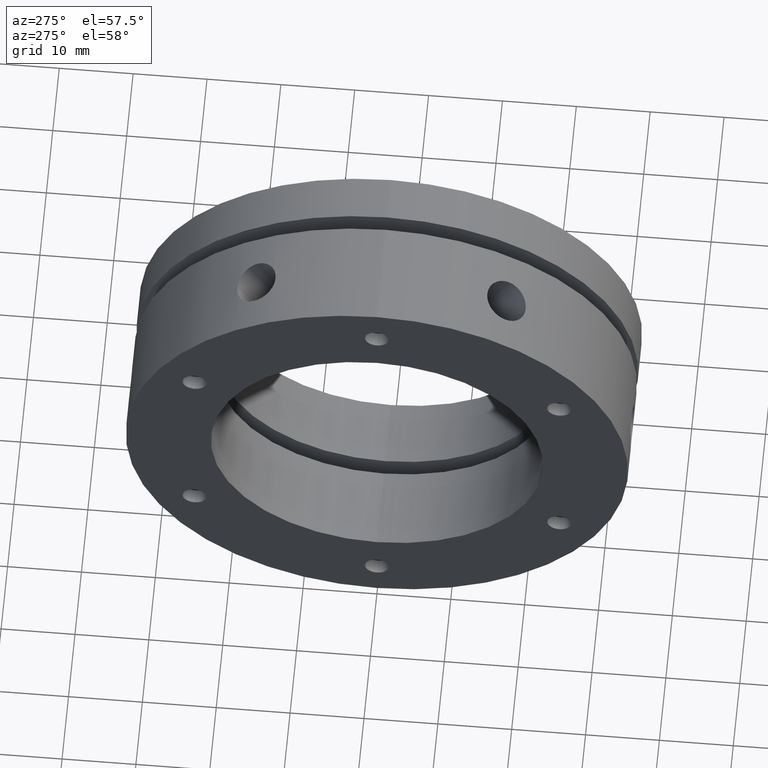
[diagram: clean part render]
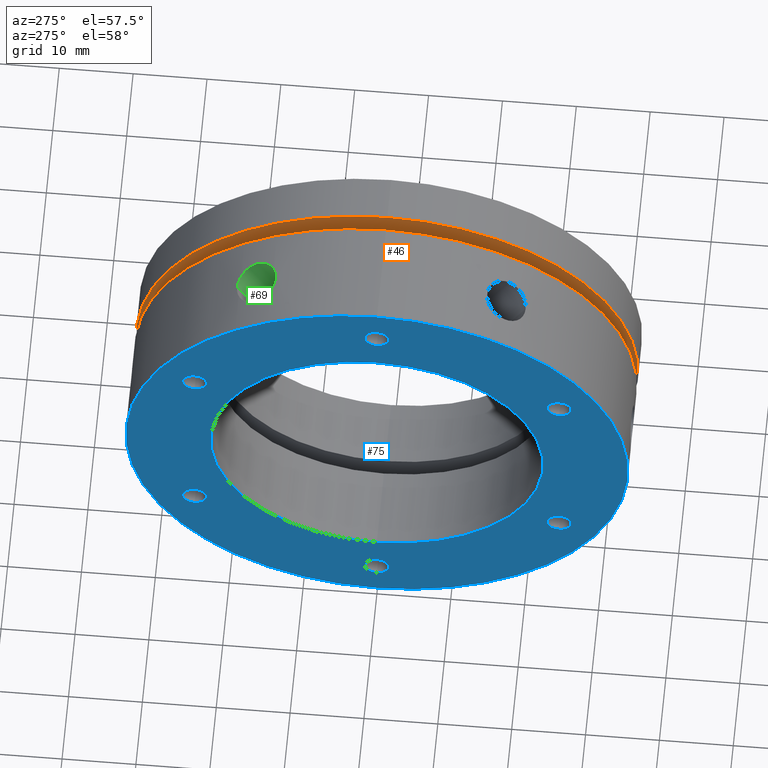
[diagram: same view with three faces highlighted in distinct colors, each labeled with its STEP entity id]
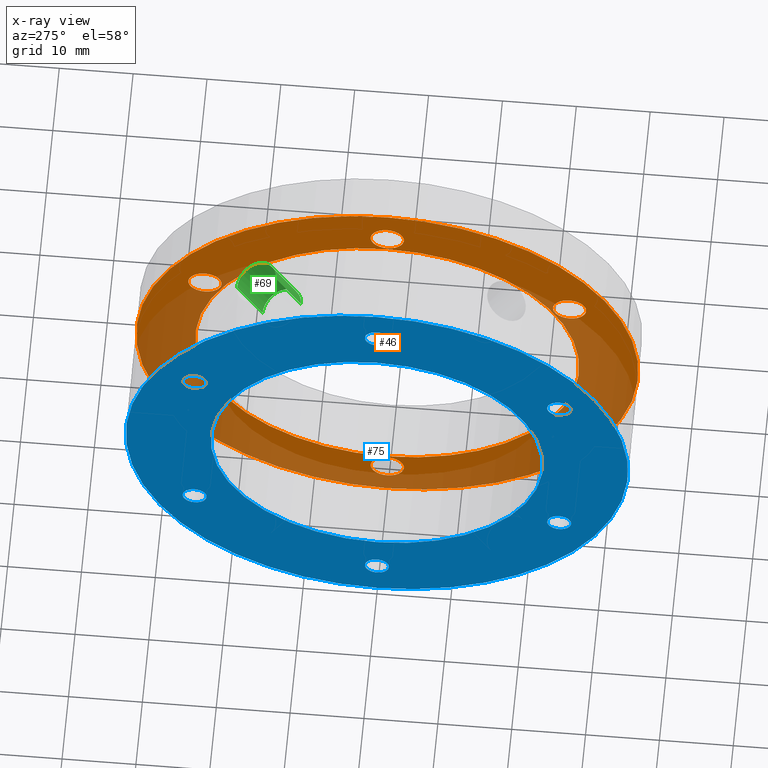
[diagram: x-ray of the same camera — body ghosted, the three highlighted faces saturated]
A machine part, auxiliary view with three faces highlighted in distinct colors.
The next image is the same camera in x-ray (body ghosted, the three faces saturated) — at least one of them is partly hidden behind the body in this view.
Their STEP definitions:

[orange] entity #46 — the highlighted planar face has unit normal (1, 0, 0).
#46 = ADVANCED_FACE ( 'NONE', ( #247, #251, #248, #250, #249, #252, #253, #254 ), #1382, .F. ) ;
#247 = FACE_BOUND ( 'NONE', #3706, .T. ) ;
#248 = FACE_BOUND ( 'NONE', #3703, .T. ) ;
#249 = FACE_BOUND ( 'NONE', #3708, .T. ) ;
#250 = FACE_BOUND ( 'NONE', #3705, .T. ) ;
#251 = FACE_BOUND ( 'NONE', #3709, .T. ) ;
#252 = FACE_BOUND ( 'NONE', #3707, .T. ) ;
#253 = FACE_BOUND ( 'NONE', #3702, .T. ) ;
#254 = FACE_OUTER_BOUND ( 'NONE', #3701, .T. ) ;
#434 = CIRCLE ( 'NONE', #1192, 2.250000000000000400 ) ;
#436 = CIRCLE ( 'NONE', #1193, 26.00000000000001100 ) ;
#457 = CIRCLE ( 'NONE', #1196, 2.250000000000000400 ) ;
#463 = CIRCLE ( 'NONE', #1197, 2.249999999999998700 ) ;
#498 = CIRCLE ( 'NONE', #1209, 34.00000000000000000 ) ;
#528 = CIRCLE ( 'NONE', #1993, 26.00000000000001100 ) ;
#651 = CIRCLE ( 'NONE', #1704, 34.00000000000000000 ) ;
#660 = CIRCLE ( 'NONE', #1712, 2.249999999999998700 ) ;
#666 = CIRCLE ( 'NONE', #1719, 2.250000000000000400 ) ;
#668 = CIRCLE ( 'NONE', #1722, 2.250000000000000400 ) ;
#669 = CIRCLE ( 'NONE', #1721, 2.250000000000001800 ) ;
#670 = CIRCLE ( 'NONE', #1723, 2.249999999999998700 ) ;
#671 = CIRCLE ( 'NONE', #1724, 2.250000000000000400 ) ;
#677 = VERTEX_POINT ( 'NONE', #1581 ) ;
#680 = VERTEX_POINT ( 'NONE', #1584 ) ;
#681 = VERTEX_POINT ( 'NONE', #1585 ) ;
#684 = VERTEX_POINT ( 'NONE', #1588 ) ;
#685 = VERTEX_POINT ( 'NONE', #1589 ) ;
#688 = VERTEX_POINT ( 'NONE', #1592 ) ;
#689 = VERTEX_POINT ( 'NONE', #1593 ) ;
#692 = VERTEX_POINT ( 'NONE', #1596 ) ;
#695 = VERTEX_POINT ( 'NONE', #1599 ) ;
#696 = VERTEX_POINT ( 'NONE', #1600 ) ;
#777 = ORIENTED_EDGE ( 'NONE', *, *, #1778, .F. ) ;
#778 = ORIENTED_EDGE ( 'NONE', *, *, #1051, .F. ) ;
#780 = ORIENTED_EDGE ( 'NONE', *, *, #2379, .F. ) ;
#784 = ORIENTED_EDGE ( 'NONE', *, *, #3632, .F. ) ;
#785 = ORIENTED_EDGE ( 'NONE', *, *, #2377, .F. ) ;
#786 = ORIENTED_EDGE ( 'NONE', *, *, #3617, .F. ) ;
#787 = ORIENTED_EDGE ( 'NONE', *, *, #2380, .F. ) ;
#788 = ORIENTED_EDGE ( 'NONE', *, *, #3625, .F. ) ;
#789 = ORIENTED_EDGE ( 'NONE', *, *, #2370, .F. ) ;
#791 = ORIENTED_EDGE ( 'NONE', *, *, #1063, .F. ) ;
#792 = ORIENTED_EDGE ( 'NONE', *, *, #1049, .F. ) ;
#793 = ORIENTED_EDGE ( 'NONE', *, *, #2362, .F. ) ;
#796 = ORIENTED_EDGE ( 'NONE', *, *, #1067, .F. ) ;
#797 = ORIENTED_EDGE ( 'NONE', *, *, #2381, .F. ) ;
#933 = ORIENTED_EDGE ( 'NONE', *, *, #1232, .F. ) ;
#944 = ORIENTED_EDGE ( 'NONE', *, *, #2382, .F. ) ;
#1049 = EDGE_CURVE ( 'NONE', #692, #689, #434, .T. ) ;
#1051 = EDGE_CURVE ( 'NONE', #4751, #4757, #436, .T. ) ;
#1063 = EDGE_CURVE ( 'NONE', #1891, #1878, #457, .T. ) ;
#1067 = EDGE_CURVE ( 'NONE', #684, #681, #463, .T. ) ;
#1192 = AXIS2_PLACEMENT_3D ( 'NONE', #2513, #2514, #2515 ) ;
#1193 = AXIS2_PLACEMENT_3D ( 'NONE', #2519, #2520, #2521 ) ;
#1196 = AXIS2_PLACEMENT_3D ( 'NONE', #2546, #2547, #2548 ) ;
#1197 = AXIS2_PLACEMENT_3D ( 'NONE', #2553, #2554, #2555 ) ;
#1209 = AXIS2_PLACEMENT_3D ( 'NONE', #2613, #2614, #2615 ) ;
#1232 = EDGE_CURVE ( 'NONE', #1882, #1896, #498, .T. ) ;
#1379 = DIRECTION ( 'NONE',  ( 1.000000000000000000, -0.0000000000000000000, 0.0000000000000000000 ) ) ;
#1381 = CARTESIAN_POINT ( 'NONE',  ( 15.99999999999999600, 30.00000000000000700, 0.0000000000000000000 ) ) ;
#1382 = PLANE ( 'NONE',  #1917 ) ;
#1384 = DIRECTION ( 'NONE',  ( 0.0000000000000000000, 0.0000000000000000000, -1.000000000000000000 ) ) ;
#1581 = CARTESIAN_POINT ( 'NONE',  ( 15.99999999999999600, 24.68172400785650600, -12.00000000000001600 ) ) ;
#1584 = CARTESIAN_POINT ( 'NONE',  ( 15.99999999999999600, 24.68172400785650600, -16.50000000000001400 ) ) ;
#1585 = CARTESIAN_POINT ( 'NONE',  ( 15.99999999999999600, -4.165346470191845000E-015, -26.25000000000001800 ) ) ;
#1588 = CARTESIAN_POINT ( 'NONE',  ( 15.99999999999999600, -4.440891999999999900E-015, -30.75000000000001400 ) ) ;
#1589 = CARTESIAN_POINT ( 'NONE',  ( 15.99999999999999600, -24.68172400785651300, -12.00000000000000400 ) ) ;
#1592 = CARTESIAN_POINT ( 'NONE',  ( 15.99999999999999600, -24.68172400785651300, -16.50000000000000400 ) ) ;
#1593 = CARTESIAN_POINT ( 'NONE',  ( 15.99999999999999600, -24.68172400785650900, 16.50000000000000700 ) ) ;
#1596 = CARTESIAN_POINT ( 'NONE',  ( 15.99999999999999600, -24.68172400785650900, 12.00000000000000700 ) ) ;
#1599 = CARTESIAN_POINT ( 'NONE',  ( 15.99999999999999600, 2.755455298081542800E-016, 30.75000000000001400 ) ) ;
#1600 = CARTESIAN_POINT ( 'NONE',  ( 15.99999999999999600, 0.0000000000000000000, 26.25000000000001100 ) ) ;
#1704 = AXIS2_PLACEMENT_3D ( 'NONE', #3136, #3137, #3138 ) ;
#1712 = AXIS2_PLACEMENT_3D ( 'NONE', #3160, #3161, #3162 ) ;
#1719 = AXIS2_PLACEMENT_3D ( 'NONE', #3181, #3182, #3183 ) ;
#1721 = AXIS2_PLACEMENT_3D ( 'NONE', #3187, #3188, #3189 ) ;
#1722 = AXIS2_PLACEMENT_3D ( 'NONE', #3190, #3191, #3192 ) ;
#1723 = AXIS2_PLACEMENT_3D ( 'NONE', #3193, #3194, #3195 ) ;
#1724 = AXIS2_PLACEMENT_3D ( 'NONE', #3198, #3199, #3200 ) ;
#1732 = AXIS2_PLACEMENT_3D ( 'NONE', #3234, #3235, #3236 ) ;
#1735 = AXIS2_PLACEMENT_3D ( 'NONE', #3251, #3252, #3253 ) ;
#1739 = AXIS2_PLACEMENT_3D ( 'NONE', #3269, #3270, #3271 ) ;
#1778 = EDGE_CURVE ( 'NONE', #4757, #4751, #528, .T. ) ;
#1878 = VERTEX_POINT ( 'NONE', #2906 ) ;
#1882 = VERTEX_POINT ( 'NONE', #2910 ) ;
#1891 = VERTEX_POINT ( 'NONE', #2919 ) ;
#1896 = VERTEX_POINT ( 'NONE', #2924 ) ;
#1917 = AXIS2_PLACEMENT_3D ( 'NONE', #1381, #1379, #1384 ) ;
#1993 = AXIS2_PLACEMENT_3D ( 'NONE', #2683, #2684, #2685 ) ;
#2362 = EDGE_CURVE ( 'NONE', #1896, #1882, #651, .T. ) ;
#2370 = EDGE_CURVE ( 'NONE', #677, #680, #660, .T. ) ;
#2377 = EDGE_CURVE ( 'NONE', #689, #692, #666, .T. ) ;
#2379 = EDGE_CURVE ( 'NONE', #695, #696, #669, .T. ) ;
#2380 = EDGE_CURVE ( 'NONE', #685, #688, #668, .T. ) ;
#2381 = EDGE_CURVE ( 'NONE', #681, #684, #670, .T. ) ;
#2382 = EDGE_CURVE ( 'NONE', #1878, #1891, #671, .T. ) ;
#2513 = CARTESIAN_POINT ( 'NONE',  ( 15.99999999999999600, -24.68172400785650900, 14.25000000000000700 ) ) ;
#2514 = DIRECTION ( 'NONE',  ( -1.000000000000000000, -0.0000000000000000000, -0.0000000000000000000 ) ) ;
#2515 = DIRECTION ( 'NONE',  ( 0.0000000000000000000, 0.0000000000000000000, -1.000000000000000000 ) ) ;
#2519 = CARTESIAN_POINT ( 'NONE',  ( 15.99999999999999600, 0.0000000000000000000, 0.0000000000000000000 ) ) ;
#2520 = DIRECTION ( 'NONE',  ( -1.000000000000000000, 0.0000000000000000000, 0.0000000000000000000 ) ) ;
#2521 = DIRECTION ( 'NONE',  ( 0.0000000000000000000, 0.0000000000000000000, 1.000000000000000000 ) ) ;
#2546 = CARTESIAN_POINT ( 'NONE',  ( 15.99999999999999600, 24.68172400785652700, 14.24999999999998600 ) ) ;
#2547 = DIRECTION ( 'NONE',  ( -1.000000000000000000, -0.0000000000000000000, -0.0000000000000000000 ) ) ;
#2548 = DIRECTION ( 'NONE',  ( 0.0000000000000000000, 0.0000000000000000000, -1.000000000000000000 ) ) ;
#2553 = CARTESIAN_POINT ( 'NONE',  ( 15.99999999999999600, -4.440891999999999900E-015, -28.50000000000001400 ) ) ;
#2554 = DIRECTION ( 'NONE',  ( -1.000000000000000000, -0.0000000000000000000, -0.0000000000000000000 ) ) ;
#2555 = DIRECTION ( 'NONE',  ( 0.0000000000000000000, 0.0000000000000000000, -1.000000000000000000 ) ) ;
#2613 = CARTESIAN_POINT ( 'NONE',  ( 15.99999999999999600, 0.0000000000000000000, 0.0000000000000000000 ) ) ;
#2614 = DIRECTION ( 'NONE',  ( 1.000000000000000000, 0.0000000000000000000, 0.0000000000000000000 ) ) ;
#2615 = DIRECTION ( 'NONE',  ( 0.0000000000000000000, 0.0000000000000000000, -1.000000000000000000 ) ) ;
#2683 = CARTESIAN_POINT ( 'NONE',  ( 15.99999999999999600, 0.0000000000000000000, 0.0000000000000000000 ) ) ;
#2684 = DIRECTION ( 'NONE',  ( -1.000000000000000000, 0.0000000000000000000, 0.0000000000000000000 ) ) ;
#2685 = DIRECTION ( 'NONE',  ( 0.0000000000000000000, 0.0000000000000000000, 1.000000000000000000 ) ) ;
#2906 = CARTESIAN_POINT ( 'NONE',  ( 15.99999999999999600, 24.68172400785652700, 16.49999999999998600 ) ) ;
#2910 = CARTESIAN_POINT ( 'NONE',  ( 15.99999999999999600, 0.0000000000000000000, -34.00000000000000000 ) ) ;
#2919 = CARTESIAN_POINT ( 'NONE',  ( 15.99999999999999600, 24.68172400785652700, 11.99999999999998600 ) ) ;
#2924 = CARTESIAN_POINT ( 'NONE',  ( 15.99999999999999600, 4.163799117101000600E-015, 34.00000000000000000 ) ) ;
#3136 = CARTESIAN_POINT ( 'NONE',  ( 15.99999999999999600, 0.0000000000000000000, 0.0000000000000000000 ) ) ;
#3137 = DIRECTION ( 'NONE',  ( 1.000000000000000000, 0.0000000000000000000, 0.0000000000000000000 ) ) ;
#3138 = DIRECTION ( 'NONE',  ( 0.0000000000000000000, 0.0000000000000000000, -1.000000000000000000 ) ) ;
#3160 = CARTESIAN_POINT ( 'NONE',  ( 15.99999999999999600, 24.68172400785650600, -14.25000000000001600 ) ) ;
#3161 = DIRECTION ( 'NONE',  ( -1.000000000000000000, -0.0000000000000000000, -0.0000000000000000000 ) ) ;
#3162 = DIRECTION ( 'NONE',  ( 0.0000000000000000000, 0.0000000000000000000, -1.000000000000000000 ) ) ;
#3181 = CARTESIAN_POINT ( 'NONE',  ( 15.99999999999999600, -24.68172400785650900, 14.25000000000000700 ) ) ;
#3182 = DIRECTION ( 'NONE',  ( -1.000000000000000000, -0.0000000000000000000, -0.0000000000000000000 ) ) ;
#3183 = DIRECTION ( 'NONE',  ( 0.0000000000000000000, 0.0000000000000000000, -1.000000000000000000 ) ) ;
#3187 = CARTESIAN_POINT ( 'NONE',  ( 15.99999999999999600, 0.0000000000000000000, 28.50000000000001100 ) ) ;
#3188 = DIRECTION ( 'NONE',  ( -1.000000000000000000, -0.0000000000000000000, -0.0000000000000000000 ) ) ;
#3189 = DIRECTION ( 'NONE',  ( 0.0000000000000000000, 0.0000000000000000000, -1.000000000000000000 ) ) ;
#3190 = CARTESIAN_POINT ( 'NONE',  ( 15.99999999999999600, -24.68172400785651300, -14.25000000000000400 ) ) ;
#3191 = DIRECTION ( 'NONE',  ( -1.000000000000000000, -0.0000000000000000000, -0.0000000000000000000 ) ) ;
#3192 = DIRECTION ( 'NONE',  ( 0.0000000000000000000, 0.0000000000000000000, -1.000000000000000000 ) ) ;
#3193 = CARTESIAN_POINT ( 'NONE',  ( 15.99999999999999600, -4.440891999999999900E-015, -28.50000000000001400 ) ) ;
#3194 = DIRECTION ( 'NONE',  ( -1.000000000000000000, -0.0000000000000000000, -0.0000000000000000000 ) ) ;
#3195 = DIRECTION ( 'NONE',  ( 0.0000000000000000000, 0.0000000000000000000, -1.000000000000000000 ) ) ;
#3198 = CARTESIAN_POINT ( 'NONE',  ( 15.99999999999999600, 24.68172400785652700, 14.24999999999998600 ) ) ;
#3199 = DIRECTION ( 'NONE',  ( -1.000000000000000000, -0.0000000000000000000, -0.0000000000000000000 ) ) ;
#3200 = DIRECTION ( 'NONE',  ( 0.0000000000000000000, 0.0000000000000000000, -1.000000000000000000 ) ) ;
#3234 = CARTESIAN_POINT ( 'NONE',  ( 15.99999999999999600, -24.68172400785651300, -14.25000000000000400 ) ) ;
#3235 = DIRECTION ( 'NONE',  ( -1.000000000000000000, -0.0000000000000000000, -0.0000000000000000000 ) ) ;
#3236 = DIRECTION ( 'NONE',  ( 0.0000000000000000000, 0.0000000000000000000, -1.000000000000000000 ) ) ;
#3251 = CARTESIAN_POINT ( 'NONE',  ( 15.99999999999999600, 24.68172400785650600, -14.25000000000001600 ) ) ;
#3252 = DIRECTION ( 'NONE',  ( -1.000000000000000000, -0.0000000000000000000, -0.0000000000000000000 ) ) ;
#3253 = DIRECTION ( 'NONE',  ( 0.0000000000000000000, 0.0000000000000000000, -1.000000000000000000 ) ) ;
#3269 = CARTESIAN_POINT ( 'NONE',  ( 15.99999999999999600, 0.0000000000000000000, 28.50000000000001100 ) ) ;
#3270 = DIRECTION ( 'NONE',  ( -1.000000000000000000, -0.0000000000000000000, -0.0000000000000000000 ) ) ;
#3271 = DIRECTION ( 'NONE',  ( 0.0000000000000000000, 0.0000000000000000000, -1.000000000000000000 ) ) ;
#3617 = EDGE_CURVE ( 'NONE', #688, #685, #3729, .T. ) ;
#3625 = EDGE_CURVE ( 'NONE', #680, #677, #3734, .T. ) ;
#3632 = EDGE_CURVE ( 'NONE', #696, #695, #3745, .T. ) ;
#3701 = EDGE_LOOP ( 'NONE', ( #933, #793 ) ) ;
#3702 = EDGE_LOOP ( 'NONE', ( #791, #944 ) ) ;
#3703 = EDGE_LOOP ( 'NONE', ( #792, #785 ) ) ;
#3705 = EDGE_LOOP ( 'NONE', ( #786, #787 ) ) ;
#3706 = EDGE_LOOP ( 'NONE', ( #778, #777 ) ) ;
#3707 = EDGE_LOOP ( 'NONE', ( #788, #789 ) ) ;
#3708 = EDGE_LOOP ( 'NONE', ( #796, #797 ) ) ;
#3709 = EDGE_LOOP ( 'NONE', ( #784, #780 ) ) ;
#3729 = CIRCLE ( 'NONE', #1732, 2.250000000000000400 ) ;
#3734 = CIRCLE ( 'NONE', #1735, 2.249999999999998700 ) ;
#3745 = CIRCLE ( 'NONE', #1739, 2.250000000000001800 ) ;
#4348 = CARTESIAN_POINT ( 'NONE',  ( 15.99999999999999600, 0.0000000000000000000, 26.00000000000001100 ) ) ;
#4354 = CARTESIAN_POINT ( 'NONE',  ( 15.99999999999999600, 3.184081677783119400E-015, -26.00000000000001100 ) ) ;
#4751 = VERTEX_POINT ( 'NONE', #4348 ) ;
#4757 = VERTEX_POINT ( 'NONE', #4354 ) ;

[blue] entity #75 — the highlighted planar face has unit normal (-1, 0, 0).
#75 = ADVANCED_FACE ( 'NONE', ( #319, #327, #323, #321, #325, #328, #329, #330 ), #1473, .T. ) ;
#319 = FACE_BOUND ( 'NONE', #3654, .T. ) ;
#321 = FACE_BOUND ( 'NONE', #3658, .T. ) ;
#323 = FACE_BOUND ( 'NONE', #3657, .T. ) ;
#325 = FACE_BOUND ( 'NONE', #3659, .T. ) ;
#327 = FACE_BOUND ( 'NONE', #3660, .T. ) ;
#328 = FACE_BOUND ( 'NONE', #3653, .T. ) ;
#329 = FACE_BOUND ( 'NONE', #3652, .T. ) ;
#330 = FACE_OUTER_BOUND ( 'NONE', #3651, .T. ) ;
#477 = CIRCLE ( 'NONE', #1201, 1.621000000000000900 ) ;
#488 = CIRCLE ( 'NONE', #1205, 1.621000000000000900 ) ;
#494 = CIRCLE ( 'NONE', #1207, 1.621000000000000900 ) ;
#504 = CIRCLE ( 'NONE', #1974, 1.620999999999999100 ) ;
#631 = CIRCLE ( 'NONE', #2028, 22.50000000000000000 ) ;
#633 = CIRCLE ( 'NONE', #2026, 34.00000000000000000 ) ;
#635 = CIRCLE ( 'NONE', #2029, 1.621000000000000900 ) ;
#637 = CIRCLE ( 'NONE', #2030, 1.620999999999999100 ) ;
#638 = CIRCLE ( 'NONE', #2031, 1.621000000000000900 ) ;
#640 = CIRCLE ( 'NONE', #2032, 1.621000000000000900 ) ;
#641 = CIRCLE ( 'NONE', #2033, 1.621000000000000900 ) ;
#642 = CIRCLE ( 'NONE', #2034, 1.620999999999999100 ) ;
#756 = ORIENTED_EDGE ( 'NONE', *, *, #4616, .T. ) ;
#772 = ORIENTED_EDGE ( 'NONE', *, *, #3647, .F. ) ;
#812 = ORIENTED_EDGE ( 'NONE', *, *, #1223, .T. ) ;
#865 = ORIENTED_EDGE ( 'NONE', *, *, #2348, .T. ) ;
#888 = ORIENTED_EDGE ( 'NONE', *, *, #2352, .T. ) ;
#889 = ORIENTED_EDGE ( 'NONE', *, *, #1227, .T. ) ;
#895 = ORIENTED_EDGE ( 'NONE', *, *, #2349, .T. ) ;
#908 = ORIENTED_EDGE ( 'NONE', *, *, #4600, .T. ) ;
#914 = ORIENTED_EDGE ( 'NONE', *, *, #1238, .T. ) ;
#917 = ORIENTED_EDGE ( 'NONE', *, *, #2347, .T. ) ;
#925 = ORIENTED_EDGE ( 'NONE', *, *, #2350, .T. ) ;
#947 = ORIENTED_EDGE ( 'NONE', *, *, #2346, .T. ) ;
#959 = ORIENTED_EDGE ( 'NONE', *, *, #2341, .F. ) ;
#961 = ORIENTED_EDGE ( 'NONE', *, *, #4611, .T. ) ;
#967 = ORIENTED_EDGE ( 'NONE', *, *, #1216, .T. ) ;
#971 = ORIENTED_EDGE ( 'NONE', *, *, #2351, .T. ) ;
#978 = VERTEX_POINT ( 'NONE', #2448 ) ;
#981 = VERTEX_POINT ( 'NONE', #2452 ) ;
#982 = VERTEX_POINT ( 'NONE', #2454 ) ;
#985 = VERTEX_POINT ( 'NONE', #2447 ) ;
#986 = VERTEX_POINT ( 'NONE', #2456 ) ;
#991 = VERTEX_POINT ( 'NONE', #2461 ) ;
#1015 = VERTEX_POINT ( 'NONE', #2485 ) ;
#1016 = VERTEX_POINT ( 'NONE', #2486 ) ;
#1022 = VERTEX_POINT ( 'NONE', #2492 ) ;
#1201 = AXIS2_PLACEMENT_3D ( 'NONE', #2576, #2577, #2578 ) ;
#1205 = AXIS2_PLACEMENT_3D ( 'NONE', #2594, #2595, #2596 ) ;
#1207 = AXIS2_PLACEMENT_3D ( 'NONE', #2604, #2605, #2606 ) ;
#1216 = EDGE_CURVE ( 'NONE', #978, #4763, #477, .T. ) ;
#1223 = EDGE_CURVE ( 'NONE', #3454, #3469, #488, .T. ) ;
#1227 = EDGE_CURVE ( 'NONE', #3514, #4762, #494, .T. ) ;
#1238 = EDGE_CURVE ( 'NONE', #4759, #4758, #504, .T. ) ;
#1469 = DIRECTION ( 'NONE',  ( -1.000000000000000000, 0.0000000000000000000, 0.0000000000000000000 ) ) ;
#1471 = CARTESIAN_POINT ( 'NONE',  ( -7.438384999999999900E-015, 28.25000000000000000, 0.0000000000000000000 ) ) ;
#1473 = PLANE ( 'NONE',  #1946 ) ;
#1474 = DIRECTION ( 'NONE',  ( 0.0000000000000000000, 0.0000000000000000000, 1.000000000000000000 ) ) ;
#1746 = AXIS2_PLACEMENT_3D ( 'NONE', #3339, #3340, #3341 ) ;
#1946 = AXIS2_PLACEMENT_3D ( 'NONE', #1471, #1469, #1474 ) ;
#1974 = AXIS2_PLACEMENT_3D ( 'NONE', #2623, #2624, #2625 ) ;
#2026 = AXIS2_PLACEMENT_3D ( 'NONE', #2983, #2984, #2985 ) ;
#2028 = AXIS2_PLACEMENT_3D ( 'NONE', #3088, #3089, #3090 ) ;
#2029 = AXIS2_PLACEMENT_3D ( 'NONE', #3091, #3092, #3093 ) ;
#2030 = AXIS2_PLACEMENT_3D ( 'NONE', #3094, #3095, #3096 ) ;
#2031 = AXIS2_PLACEMENT_3D ( 'NONE', #3097, #3098, #3099 ) ;
#2032 = AXIS2_PLACEMENT_3D ( 'NONE', #3100, #3101, #3102 ) ;
#2033 = AXIS2_PLACEMENT_3D ( 'NONE', #3103, #3104, #3105 ) ;
#2034 = AXIS2_PLACEMENT_3D ( 'NONE', #3106, #3107, #3108 ) ;
#2341 = EDGE_CURVE ( 'NONE', #1022, #1016, #633, .T. ) ;
#2346 = EDGE_CURVE ( 'NONE', #1015, #991, #631, .T. ) ;
#2347 = EDGE_CURVE ( 'NONE', #985, #986, #635, .T. ) ;
#2348 = EDGE_CURVE ( 'NONE', #981, #982, #637, .T. ) ;
#2349 = EDGE_CURVE ( 'NONE', #4763, #978, #638, .T. ) ;
#2350 = EDGE_CURVE ( 'NONE', #3469, #3454, #640, .T. ) ;
#2351 = EDGE_CURVE ( 'NONE', #4762, #3514, #641, .T. ) ;
#2352 = EDGE_CURVE ( 'NONE', #4758, #4759, #642, .T. ) ;
#2447 = CARTESIAN_POINT ( 'NONE',  ( -7.806255641895631900E-015, 1.985152461417858200E-016, 26.87900000000001200 ) ) ;
#2448 = CARTESIAN_POINT ( 'NONE',  ( -7.806255641895631900E-015, -24.68172400785651300, -12.62900000000000300 ) ) ;
#2452 = CARTESIAN_POINT ( 'NONE',  ( -7.806255641895631900E-015, -24.68172400785650900, 12.62900000000000700 ) ) ;
#2454 = CARTESIAN_POINT ( 'NONE',  ( -7.806255641895631900E-015, -24.68172400785650900, 15.87100000000000600 ) ) ;
#2456 = CARTESIAN_POINT ( 'NONE',  ( -7.806255641895631900E-015, 0.0000000000000000000, 30.12100000000001300 ) ) ;
#2461 = CARTESIAN_POINT ( 'NONE',  ( -5.204170427930421300E-015, 2.755455298081544800E-015, 22.50000000000000000 ) ) ;
#2485 = CARTESIAN_POINT ( 'NONE',  ( -5.204170427930421300E-015, 0.0000000000000000000, -22.50000000000000000 ) ) ;
#2486 = CARTESIAN_POINT ( 'NONE',  ( -8.673617379884035500E-015, 0.0000000000000000000, -34.00000000000000000 ) ) ;
#2492 = CARTESIAN_POINT ( 'NONE',  ( -8.673617379884035500E-015, 4.163799117101000600E-015, 34.00000000000000000 ) ) ;
#2576 = CARTESIAN_POINT ( 'NONE',  ( -7.806255641895631900E-015, -24.68172400785651300, -14.25000000000000400 ) ) ;
#2577 = DIRECTION ( 'NONE',  ( 1.000000000000000000, -0.0000000000000000000, -0.0000000000000000000 ) ) ;
#2578 = DIRECTION ( 'NONE',  ( 0.0000000000000000000, 0.0000000000000000000, 1.000000000000000000 ) ) ;
#2594 = CARTESIAN_POINT ( 'NONE',  ( -7.806255641895631900E-015, -4.440891999999999900E-015, -28.50000000000001400 ) ) ;
#2595 = DIRECTION ( 'NONE',  ( 1.000000000000000000, -0.0000000000000000000, -0.0000000000000000000 ) ) ;
#2596 = DIRECTION ( 'NONE',  ( 0.0000000000000000000, 0.0000000000000000000, 1.000000000000000000 ) ) ;
#2604 = CARTESIAN_POINT ( 'NONE',  ( -7.806255641895631900E-015, 24.68172400785650600, -14.25000000000001600 ) ) ;
#2605 = DIRECTION ( 'NONE',  ( 1.000000000000000000, -0.0000000000000000000, -0.0000000000000000000 ) ) ;
#2606 = DIRECTION ( 'NONE',  ( 0.0000000000000000000, 0.0000000000000000000, 1.000000000000000000 ) ) ;
#2623 = CARTESIAN_POINT ( 'NONE',  ( -7.806255641895631900E-015, 24.68172400785652700, 14.24999999999998600 ) ) ;
#2624 = DIRECTION ( 'NONE',  ( 1.000000000000000000, -0.0000000000000000000, -0.0000000000000000000 ) ) ;
#2625 = DIRECTION ( 'NONE',  ( 0.0000000000000000000, 0.0000000000000000000, 1.000000000000000000 ) ) ;
#2983 = CARTESIAN_POINT ( 'NONE',  ( -8.673617379884035500E-015, 0.0000000000000000000, 0.0000000000000000000 ) ) ;
#2984 = DIRECTION ( 'NONE',  ( 1.000000000000000000, 0.0000000000000000000, 0.0000000000000000000 ) ) ;
#2985 = DIRECTION ( 'NONE',  ( 0.0000000000000000000, 0.0000000000000000000, -1.000000000000000000 ) ) ;
#3088 = CARTESIAN_POINT ( 'NONE',  ( -5.204170427930421300E-015, 0.0000000000000000000, 0.0000000000000000000 ) ) ;
#3089 = DIRECTION ( 'NONE',  ( 1.000000000000000000, 0.0000000000000000000, 0.0000000000000000000 ) ) ;
#3090 = DIRECTION ( 'NONE',  ( 0.0000000000000000000, 0.0000000000000000000, -1.000000000000000000 ) ) ;
#3091 = CARTESIAN_POINT ( 'NONE',  ( -7.806255641895631900E-015, 0.0000000000000000000, 28.50000000000001100 ) ) ;
#3092 = DIRECTION ( 'NONE',  ( 1.000000000000000000, -0.0000000000000000000, -0.0000000000000000000 ) ) ;
#3093 = DIRECTION ( 'NONE',  ( 0.0000000000000000000, 0.0000000000000000000, 1.000000000000000000 ) ) ;
#3094 = CARTESIAN_POINT ( 'NONE',  ( -7.806255641895631900E-015, -24.68172400785650900, 14.25000000000000700 ) ) ;
#3095 = DIRECTION ( 'NONE',  ( 1.000000000000000000, -0.0000000000000000000, -0.0000000000000000000 ) ) ;
#3096 = DIRECTION ( 'NONE',  ( 0.0000000000000000000, 0.0000000000000000000, 1.000000000000000000 ) ) ;
#3097 = CARTESIAN_POINT ( 'NONE',  ( -7.806255641895631900E-015, -24.68172400785651300, -14.25000000000000400 ) ) ;
#3098 = DIRECTION ( 'NONE',  ( 1.000000000000000000, -0.0000000000000000000, -0.0000000000000000000 ) ) ;
#3099 = DIRECTION ( 'NONE',  ( 0.0000000000000000000, 0.0000000000000000000, 1.000000000000000000 ) ) ;
#3100 = CARTESIAN_POINT ( 'NONE',  ( -7.806255641895631900E-015, -4.440891999999999900E-015, -28.50000000000001400 ) ) ;
#3101 = DIRECTION ( 'NONE',  ( 1.000000000000000000, -0.0000000000000000000, -0.0000000000000000000 ) ) ;
#3102 = DIRECTION ( 'NONE',  ( 0.0000000000000000000, 0.0000000000000000000, 1.000000000000000000 ) ) ;
#3103 = CARTESIAN_POINT ( 'NONE',  ( -7.806255641895631900E-015, 24.68172400785650600, -14.25000000000001600 ) ) ;
#3104 = DIRECTION ( 'NONE',  ( 1.000000000000000000, -0.0000000000000000000, -0.0000000000000000000 ) ) ;
#3105 = DIRECTION ( 'NONE',  ( 0.0000000000000000000, 0.0000000000000000000, 1.000000000000000000 ) ) ;
#3106 = CARTESIAN_POINT ( 'NONE',  ( -7.806255641895631900E-015, 24.68172400785652700, 14.24999999999998600 ) ) ;
#3107 = DIRECTION ( 'NONE',  ( 1.000000000000000000, -0.0000000000000000000, -0.0000000000000000000 ) ) ;
#3108 = DIRECTION ( 'NONE',  ( 0.0000000000000000000, 0.0000000000000000000, 1.000000000000000000 ) ) ;
#3339 = CARTESIAN_POINT ( 'NONE',  ( -8.673617379884035500E-015, 0.0000000000000000000, 0.0000000000000000000 ) ) ;
#3340 = DIRECTION ( 'NONE',  ( 1.000000000000000000, 0.0000000000000000000, 0.0000000000000000000 ) ) ;
#3341 = DIRECTION ( 'NONE',  ( 0.0000000000000000000, 0.0000000000000000000, -1.000000000000000000 ) ) ;
#3454 = VERTEX_POINT ( 'NONE', #4364 ) ;
#3469 = VERTEX_POINT ( 'NONE', #4363 ) ;
#3514 = VERTEX_POINT ( 'NONE', #4360 ) ;
#3647 = EDGE_CURVE ( 'NONE', #1016, #1022, #3769, .T. ) ;
#3651 = EDGE_LOOP ( 'NONE', ( #772, #959 ) ) ;
#3652 = EDGE_LOOP ( 'NONE', ( #914, #888 ) ) ;
#3653 = EDGE_LOOP ( 'NONE', ( #889, #971 ) ) ;
#3654 = EDGE_LOOP ( 'NONE', ( #947, #908 ) ) ;
#3657 = EDGE_LOOP ( 'NONE', ( #756, #865 ) ) ;
#3658 = EDGE_LOOP ( 'NONE', ( #967, #895 ) ) ;
#3659 = EDGE_LOOP ( 'NONE', ( #812, #925 ) ) ;
#3660 = EDGE_LOOP ( 'NONE', ( #961, #917 ) ) ;
#3769 = CIRCLE ( 'NONE', #1746, 34.00000000000000000 ) ;
#3803 = CIRCLE ( 'NONE', #4675, 22.50000000000000000 ) ;
#3823 = CIRCLE ( 'NONE', #4679, 1.621000000000000900 ) ;
#3826 = CIRCLE ( 'NONE', #4682, 1.620999999999999100 ) ;
#4035 = CARTESIAN_POINT ( 'NONE',  ( -5.204170427930421300E-015, 0.0000000000000000000, 0.0000000000000000000 ) ) ;
#4036 = DIRECTION ( 'NONE',  ( 1.000000000000000000, 0.0000000000000000000, 0.0000000000000000000 ) ) ;
#4037 = DIRECTION ( 'NONE',  ( 0.0000000000000000000, 0.0000000000000000000, -1.000000000000000000 ) ) ;
#4060 = CARTESIAN_POINT ( 'NONE',  ( -7.806255641895631900E-015, 0.0000000000000000000, 28.50000000000001100 ) ) ;
#4061 = DIRECTION ( 'NONE',  ( 1.000000000000000000, -0.0000000000000000000, -0.0000000000000000000 ) ) ;
#4062 = DIRECTION ( 'NONE',  ( 0.0000000000000000000, 0.0000000000000000000, 1.000000000000000000 ) ) ;
#4075 = CARTESIAN_POINT ( 'NONE',  ( -7.806255641895631900E-015, -24.68172400785650900, 14.25000000000000700 ) ) ;
#4076 = DIRECTION ( 'NONE',  ( 1.000000000000000000, -0.0000000000000000000, -0.0000000000000000000 ) ) ;
#4077 = DIRECTION ( 'NONE',  ( 0.0000000000000000000, 0.0000000000000000000, 1.000000000000000000 ) ) ;
#4355 = CARTESIAN_POINT ( 'NONE',  ( -7.806255641895631900E-015, 24.68172400785652700, 12.62899999999998500 ) ) ;
#4356 = CARTESIAN_POINT ( 'NONE',  ( -7.806255641895631900E-015, 24.68172400785652700, 15.87099999999998600 ) ) ;
#4359 = CARTESIAN_POINT ( 'NONE',  ( -7.806255641895631900E-015, 24.68172400785650600, -15.87100000000001600 ) ) ;
#4360 = CARTESIAN_POINT ( 'NONE',  ( -7.806255641895631900E-015, 24.68172400785650600, -12.62900000000001600 ) ) ;
#4363 = CARTESIAN_POINT ( 'NONE',  ( -7.806255641895631900E-015, -4.242376753858213700E-015, -30.12100000000001600 ) ) ;
#4364 = CARTESIAN_POINT ( 'NONE',  ( -7.806255641895631900E-015, -4.440891999999999900E-015, -26.87900000000001600 ) ) ;
#4367 = CARTESIAN_POINT ( 'NONE',  ( -7.806255641895631900E-015, -24.68172400785651300, -15.87100000000000400 ) ) ;
#4600 = EDGE_CURVE ( 'NONE', #991, #1015, #3803, .T. ) ;
#4611 = EDGE_CURVE ( 'NONE', #986, #985, #3823, .T. ) ;
#4616 = EDGE_CURVE ( 'NONE', #982, #981, #3826, .T. ) ;
#4675 = AXIS2_PLACEMENT_3D ( 'NONE', #4035, #4036, #4037 ) ;
#4679 = AXIS2_PLACEMENT_3D ( 'NONE', #4060, #4061, #4062 ) ;
#4682 = AXIS2_PLACEMENT_3D ( 'NONE', #4075, #4076, #4077 ) ;
#4758 = VERTEX_POINT ( 'NONE', #4355 ) ;
#4759 = VERTEX_POINT ( 'NONE', #4356 ) ;
#4762 = VERTEX_POINT ( 'NONE', #4359 ) ;
#4763 = VERTEX_POINT ( 'NONE', #4367 ) ;

[green] entity #69 — the highlighted cylindrical surface (edge-blend (fillet) strip) has radius 3 mm, axis along (0, 0.5, 0.866).
#69 = ADVANCED_FACE ( 'NONE', ( #311 ), #316, .F. ) ;
#311 = FACE_OUTER_BOUND ( 'NONE', #3664, .T. ) ;
#316 = CYLINDRICAL_SURFACE ( 'NONE', #1940, 3.000000000000001300 ) ;
#514 = CIRCLE ( 'NONE', #1978, 3.000000000000001300 ) ;
#903 = ORIENTED_EDGE ( 'NONE', *, *, #4618, .F. ) ;
#904 = ORIENTED_EDGE ( 'NONE', *, *, #4599, .T. ) ;
#929 = ORIENTED_EDGE ( 'NONE', *, *, #4598, .F. ) ;
#938 = ORIENTED_EDGE ( 'NONE', *, *, #1763, .F. ) ;
#993 = VERTEX_POINT ( 'NONE', #2463 ) ;
#997 = VERTEX_POINT ( 'NONE', #2467 ) ;
#1008 = VERTEX_POINT ( 'NONE', #2478 ) ;
#1014 = VERTEX_POINT ( 'NONE', #2484 ) ;
#1452 = DIRECTION ( 'NONE',  ( 0.0000000000000000000, -0.8660254037844378200, 0.5000000000000014400 ) ) ;
#1454 = DIRECTION ( 'NONE',  ( 0.0000000000000000000, 0.5000000000000010000, 0.8660254037844380400 ) ) ;
#1455 = CARTESIAN_POINT ( 'NONE',  ( 6.999999999999992900, 15.25000000000003000, 26.41377481542537000 ) ) ;
#1763 = EDGE_CURVE ( 'NONE', #997, #993, #514, .T. ) ;
#1940 = AXIS2_PLACEMENT_3D ( 'NONE', #1455, #1454, #1452 ) ;
#1965 = B_SPLINE_CURVE_WITH_KNOTS ( 'NONE', 3,
 ( #4073, #4074, #4080, #4081, #4082, #4083, #4084, #4085, #4086, #4087, #4088, #4089, #4090, #4091, #4092, #4093, #4094, #4095, #4096, #4097, #4098, #4099, #4100, #4101, #4102, #4103, #4104, #4105, #4106, #4107, #4108, #4109, #4110, #4111 ),
 .UNSPECIFIED., .F., .F.,
 ( 4, 2, 2, 2, 2, 2, 2, 2, 2, 2, 2, 2, 2, 2, 2, 2, 4 ),
 ( 0.004693045410762538400, 0.005279413698573374700, 0.005865781986384211800, 0.006452150274195048000, 0.007038518562005885100, 0.007624886849816721300, 0.008211255137627557600, 0.008797623425438393800, 0.009383991713249231800, 0.009970360001060066300, 0.01055672828887090400, 0.01114309657668174000, 0.01172946486449257700, 0.01231583315230341500, 0.01290220144011425100, 0.01348856972792508700, 0.01407493801573592300 ),
 .UNSPECIFIED. ) ;
#1978 = AXIS2_PLACEMENT_3D ( 'NONE', #2636, #2637, #2638 ) ;
#2463 = CARTESIAN_POINT ( 'NONE',  ( 6.999999999999992900, 16.09807620797631600, 21.88268590412955600 ) ) ;
#2467 = CARTESIAN_POINT ( 'NONE',  ( 6.999999999999992900, 10.90192379202373900, 24.88268590023011100 ) ) ;
#2478 = CARTESIAN_POINT ( 'NONE',  ( 6.999999999999992900, 19.53177043322944700, 27.83001875212491100 ) ) ;
#2484 = CARTESIAN_POINT ( 'NONE',  ( 6.999999999999992900, 14.33561801052281500, 30.83001875212491400 ) ) ;
#2636 = CARTESIAN_POINT ( 'NONE',  ( 6.999999999999992900, 13.50000000000002700, 23.38268590217983300 ) ) ;
#2637 = DIRECTION ( 'NONE',  ( 0.0000000000000000000, 0.5000000000000010000, 0.8660254037844380400 ) ) ;
#2638 = DIRECTION ( 'NONE',  ( 0.0000000000000000000, -0.8660254037844378200, 0.5000000000000014400 ) ) ;
#3664 = EDGE_LOOP ( 'NONE', ( #929, #938, #904, #903 ) ) ;
#3796 = LINE ( 'NONE', #4027, #3806 ) ;
#3802 = LINE ( 'NONE', #4022, #3804 ) ;
#3804 = VECTOR ( 'NONE', #4017, 1000.000000000000000 ) ;
#3806 = VECTOR ( 'NONE', #4032, 1000.000000000000000 ) ;
#4017 = DIRECTION ( 'NONE',  ( 0.0000000000000000000, 0.5000000000000010000, 0.8660254037844380400 ) ) ;
#4022 = CARTESIAN_POINT ( 'NONE',  ( 6.999999999999992900, 17.84807621135334400, 24.91377481542536600 ) ) ;
#4027 = CARTESIAN_POINT ( 'NONE',  ( 6.999999999999992900, 12.65192378864671600, 27.91377481542537700 ) ) ;
#4032 = DIRECTION ( 'NONE',  ( 0.0000000000000000000, 0.5000000000000010000, 0.8660254037844380400 ) ) ;
#4073 = CARTESIAN_POINT ( 'NONE',  ( 6.999999999999992900, 19.53177043322944700, 27.83001875212491100 ) ) ;
#4074 = CARTESIAN_POINT ( 'NONE',  ( 7.195737869224785800, 19.53177043322945000, 27.83001875212491100 ) ) ;
#4080 = CARTESIAN_POINT ( 'NONE',  ( 7.394559646420142400, 19.51567472608582700, 27.84133480725522200 ) ) ;
#4081 = CARTESIAN_POINT ( 'NONE',  ( 7.779291775332159100, 19.45253795053448100, 27.88548459588037100 ) ) ;
#4082 = CARTESIAN_POINT ( 'NONE',  ( 7.966297107354907100, 19.40584100357655800, 27.91807712685789500 ) ) ;
#4083 = CARTESIAN_POINT ( 'NONE',  ( 8.329529871685645400, 19.28171276856250000, 28.00395058251482900 ) ) ;
#4084 = CARTESIAN_POINT ( 'NONE',  ( 8.505018561817156100, 19.20405839245953300, 28.05736979078228200 ) ) ;
#4085 = CARTESIAN_POINT ( 'NONE',  ( 8.829880622751860000, 19.02394079909518300, 28.17980721705206200 ) ) ;
#4086 = CARTESIAN_POINT ( 'NONE',  ( 8.981328917936755500, 18.92086156325136800, 28.24925988576018600 ) ) ;
#4087 = CARTESIAN_POINT ( 'NONE',  ( 9.261388480381100400, 18.68706801555676500, 28.40445696314044000 ) ) ;
#4088 = CARTESIAN_POINT ( 'NONE',  ( 9.385432983580114900, 18.56014395922066400, 28.48767271015468300 ) ) ;
#4089 = CARTESIAN_POINT ( 'NONE',  ( 9.602582358968543700, 18.28681741466102700, 28.66389277594264900 ) ) ;
#4090 = CARTESIAN_POINT ( 'NONE',  ( 9.696490530392068800, 18.13863393304181300, 28.75800765849965000 ) ) ;
#4091 = CARTESIAN_POINT ( 'NONE',  ( 9.846966235817838300, 17.83009118370079400, 28.95031768088453500 ) ) ;
#4092 = CARTESIAN_POINT ( 'NONE',  ( 9.903679323956282600, 17.67057719593540800, 29.04802369508009700 ) ) ;
#4093 = CARTESIAN_POINT ( 'NONE',  ( 9.980388841919674900, 17.34087397966189700, 29.24604364095992200 ) ) ;
#4094 = CARTESIAN_POINT ( 'NONE',  ( 10.00014044187055100, 17.16984809131699700, 29.34681619639205900 ) ) ;
#4095 = CARTESIAN_POINT ( 'NONE',  ( 9.999858036296142700, 16.82645096355333800, 29.54504784756416700 ) ) ;
#4096 = CARTESIAN_POINT ( 'NONE',  ( 9.980260380797073300, 16.65677093671913100, 29.64099783978272700 ) ) ;
#4097 = CARTESIAN_POINT ( 'NONE',  ( 9.903745968701191100, 16.32137567406769200, 29.82699225671751400 ) ) ;
#4098 = CARTESIAN_POINT ( 'NONE',  ( 9.845890933567377000, 16.15389048204995600, 29.91796816839747200 ) ) ;
#4099 = CARTESIAN_POINT ( 'NONE',  ( 9.695062503719182000, 15.83329365004482300, 30.08886520330666800 ) ) ;
#4100 = CARTESIAN_POINT ( 'NONE',  ( 9.602809742897147100, 15.68052617812433900, 30.16865446060870700 ) ) ;
#4101 = CARTESIAN_POINT ( 'NONE',  ( 9.384909483269339600, 15.39030627934175800, 30.31773549944820400 ) ) ;
#4102 = CARTESIAN_POINT ( 'NONE',  ( 9.258177116145715100, 15.25238621908396700, 30.38723228131401700 ) ) ;
#4103 = CARTESIAN_POINT ( 'NONE',  ( 8.981398480374174700, 15.00438986824667600, 30.51044830506905100 ) ) ;
#4104 = CARTESIAN_POINT ( 'NONE',  ( 8.830369309550702500, 14.89266126381836300, 30.56502425648729800 ) ) ;
#4105 = CARTESIAN_POINT ( 'NONE',  ( 8.502346880770073100, 14.69484598681107100, 30.66061918393683800 ) ) ;
#4106 = CARTESIAN_POINT ( 'NONE',  ( 8.327865112136457500, 14.61061365072040800, 30.70074246522616000 ) ) ;
#4107 = CARTESIAN_POINT ( 'NONE',  ( 7.966875255423063100, 14.47509806434887000, 30.76486884734342900 ) ) ;
#4108 = CARTESIAN_POINT ( 'NONE',  ( 7.777695118847106800, 14.42280303245541400, 30.78935272015213100 ) ) ;
#4109 = CARTESIAN_POINT ( 'NONE',  ( 7.390434657445859500, 14.35289643267691800, 30.82200272908615800 ) ) ;
#4110 = CARTESIAN_POINT ( 'NONE',  ( 7.195737563935063400, 14.33561801052281500, 30.83001875212491400 ) ) ;
#4111 = CARTESIAN_POINT ( 'NONE',  ( 6.999999999999992900, 14.33561801052281500, 30.83001875212491400 ) ) ;
#4598 = EDGE_CURVE ( 'NONE', #993, #1008, #3802, .T. ) ;
#4599 = EDGE_CURVE ( 'NONE', #997, #1014, #3796, .T. ) ;
#4618 = EDGE_CURVE ( 'NONE', #1008, #1014, #1965, .T. ) ;